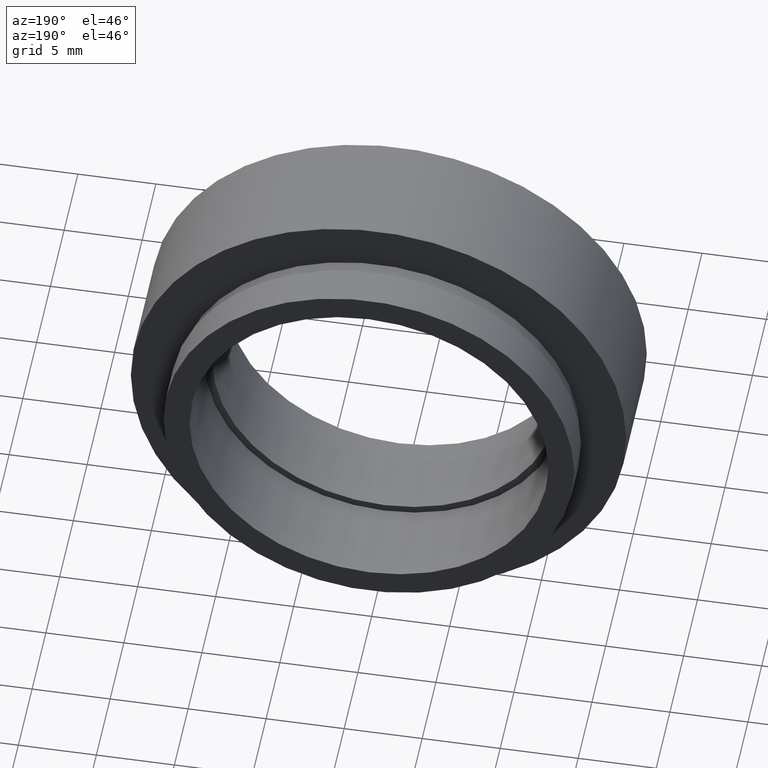
[diagram: clean part render]
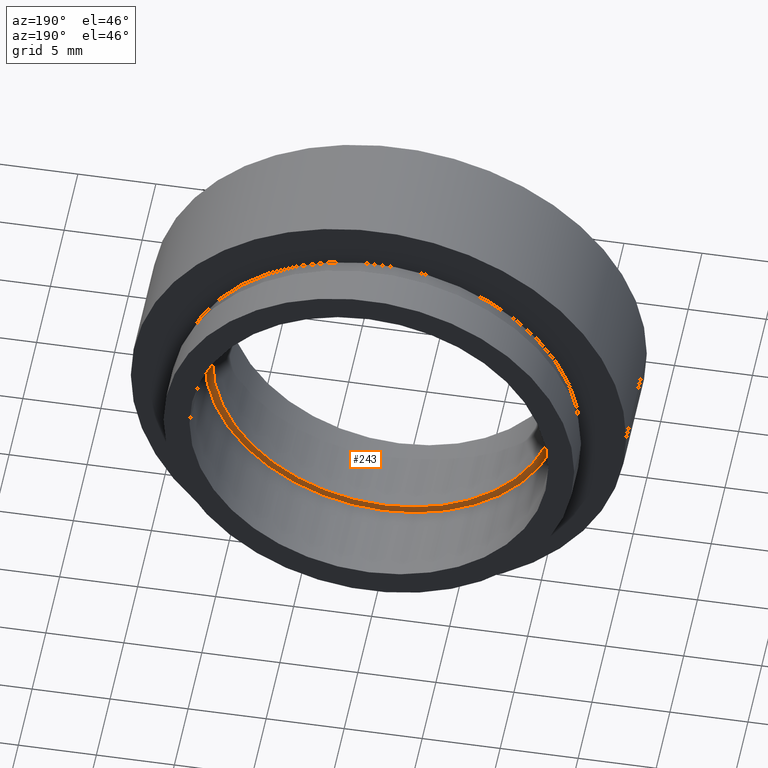
[diagram: same view with one face highlighted and labeled with its STEP entity id]
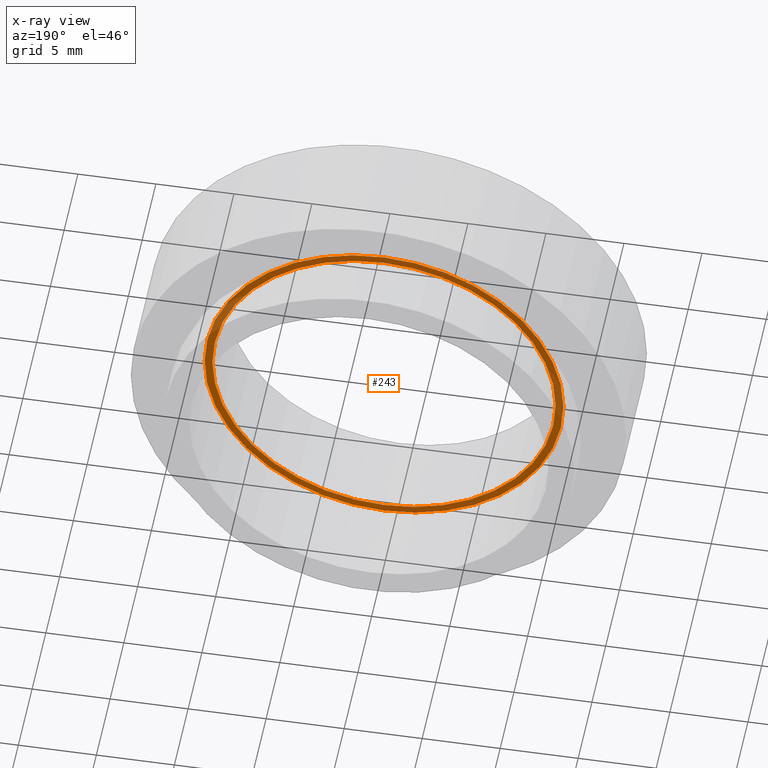
[diagram: x-ray of the same camera — body ghosted, the highlighted face saturated]
A machine part, auxiliary view. The second image highlights one B-rep face of the part: STEP entity #243.
The next image is the same camera in x-ray: the body ghosted, the highlighted face saturated — about 20% of this face is hidden behind the body in this view.
In plain terms, the highlighted planar face has unit normal (0, -1, 0).
Its self-contained STEP definition (entity closure, byte-faithful):
#7 = DIRECTION ( 'NONE',  ( -1.000000000000000000, -1.508455196501571400E-016, 0.0000000000000000000 ) ) ;
#13 = DIRECTION ( 'NONE',  ( -1.224646799147351000E-016, 1.000000000000000000, -0.0000000000000000000 ) ) ;
#20 = DIRECTION ( 'NONE',  ( -1.000000000000000000, -1.577021341797097300E-016, 0.0000000000000000000 ) ) ;
#71 = FACE_OUTER_BOUND ( 'NONE', #109, .T. ) ;
#90 = ORIENTED_EDGE ( 'NONE', *, *, #165, .F. ) ;
#109 = EDGE_LOOP ( 'NONE', ( #533, #206 ) ) ;
#110 = CARTESIAN_POINT ( 'NONE',  ( -10.99999999999999800, 5.499999999999996400, 0.0000000000000000000 ) ) ;
#112 = EDGE_CURVE ( 'NONE', #395, #162, #250, .T. ) ;
#131 = CARTESIAN_POINT ( 'NONE',  ( -11.49999999999999800, 5.499999999999996400, 0.0000000000000000000 ) ) ;
#143 = AXIS2_PLACEMENT_3D ( 'NONE', #308, #342, #20 ) ;
#151 = AXIS2_PLACEMENT_3D ( 'NONE', #157, #158, #273 ) ;
#157 = CARTESIAN_POINT ( 'NONE',  ( 1.394385078907593000E-015, 5.499999999999998200, 0.0000000000000000000 ) ) ;
#158 = DIRECTION ( 'NONE',  ( -1.224646799147351000E-016, 1.000000000000000000, -0.0000000000000000000 ) ) ;
#162 = VERTEX_POINT ( 'NONE', #469 ) ;
#165 = EDGE_CURVE ( 'NONE', #309, #364, #270, .T. ) ;
#173 = AXIS2_PLACEMENT_3D ( 'NONE', #225, #389, #346 ) ;
#187 = CARTESIAN_POINT ( 'NONE',  ( 1.394385078907593000E-015, 5.499999999999998200, 0.0000000000000000000 ) ) ;
#194 = DIRECTION ( 'NONE',  ( -1.000000000000000000, -1.577021341797097300E-016, 0.0000000000000000000 ) ) ;
#206 = ORIENTED_EDGE ( 'NONE', *, *, #281, .T. ) ;
#222 = AXIS2_PLACEMENT_3D ( 'NONE', #187, #13, #7 ) ;
#225 = CARTESIAN_POINT ( 'NONE',  ( 11.00000000000000200, 5.500000000000000000, 0.0000000000000000000 ) ) ;
#243 = ADVANCED_FACE ( 'NONE', ( #497, #71 ), #435, .F. ) ;
#250 = CIRCLE ( 'NONE', #222, 11.50000000000000000 ) ;
#270 = CIRCLE ( 'NONE', #143, 11.00000000000000000 ) ;
#273 = DIRECTION ( 'NONE',  ( -1.000000000000000000, -1.508455196501571400E-016, 0.0000000000000000000 ) ) ;
#281 = EDGE_CURVE ( 'NONE', #162, #395, #368, .T. ) ;
#287 = ORIENTED_EDGE ( 'NONE', *, *, #456, .F. ) ;
#308 = CARTESIAN_POINT ( 'NONE',  ( 1.394385078907593000E-015, 5.499999999999998200, 0.0000000000000000000 ) ) ;
#309 = VERTEX_POINT ( 'NONE', #110 ) ;
#342 = DIRECTION ( 'NONE',  ( -1.224646799147351000E-016, 1.000000000000000000, -0.0000000000000000000 ) ) ;
#346 = DIRECTION ( 'NONE',  ( 1.000000000000000000, 1.224646799147351000E-016, 0.0000000000000000000 ) ) ;
#364 = VERTEX_POINT ( 'NONE', #461 ) ;
#368 = CIRCLE ( 'NONE', #151, 11.50000000000000000 ) ;
#389 = DIRECTION ( 'NONE',  ( 1.224646799147351000E-016, -1.000000000000000000, 0.0000000000000000000 ) ) ;
#395 = VERTEX_POINT ( 'NONE', #131 ) ;
#421 = EDGE_LOOP ( 'NONE', ( #90, #287 ) ) ;
#426 = CARTESIAN_POINT ( 'NONE',  ( 1.394385078907593000E-015, 5.499999999999998200, 0.0000000000000000000 ) ) ;
#435 = PLANE ( 'NONE',  #173 ) ;
#456 = EDGE_CURVE ( 'NONE', #364, #309, #506, .T. ) ;
#461 = CARTESIAN_POINT ( 'NONE',  ( 11.00000000000000200, 5.500000000000000000, 1.347111479062088400E-015 ) ) ;
#469 = CARTESIAN_POINT ( 'NONE',  ( 11.50000000000000200, 5.500000000000000000, 1.408343819019456600E-015 ) ) ;
#482 = DIRECTION ( 'NONE',  ( -1.224646799147351000E-016, 1.000000000000000000, -0.0000000000000000000 ) ) ;
#497 = FACE_BOUND ( 'NONE', #421, .T. ) ;
#506 = CIRCLE ( 'NONE', #510, 11.00000000000000000 ) ;
#510 = AXIS2_PLACEMENT_3D ( 'NONE', #426, #482, #194 ) ;
#533 = ORIENTED_EDGE ( 'NONE', *, *, #112, .T. ) ;